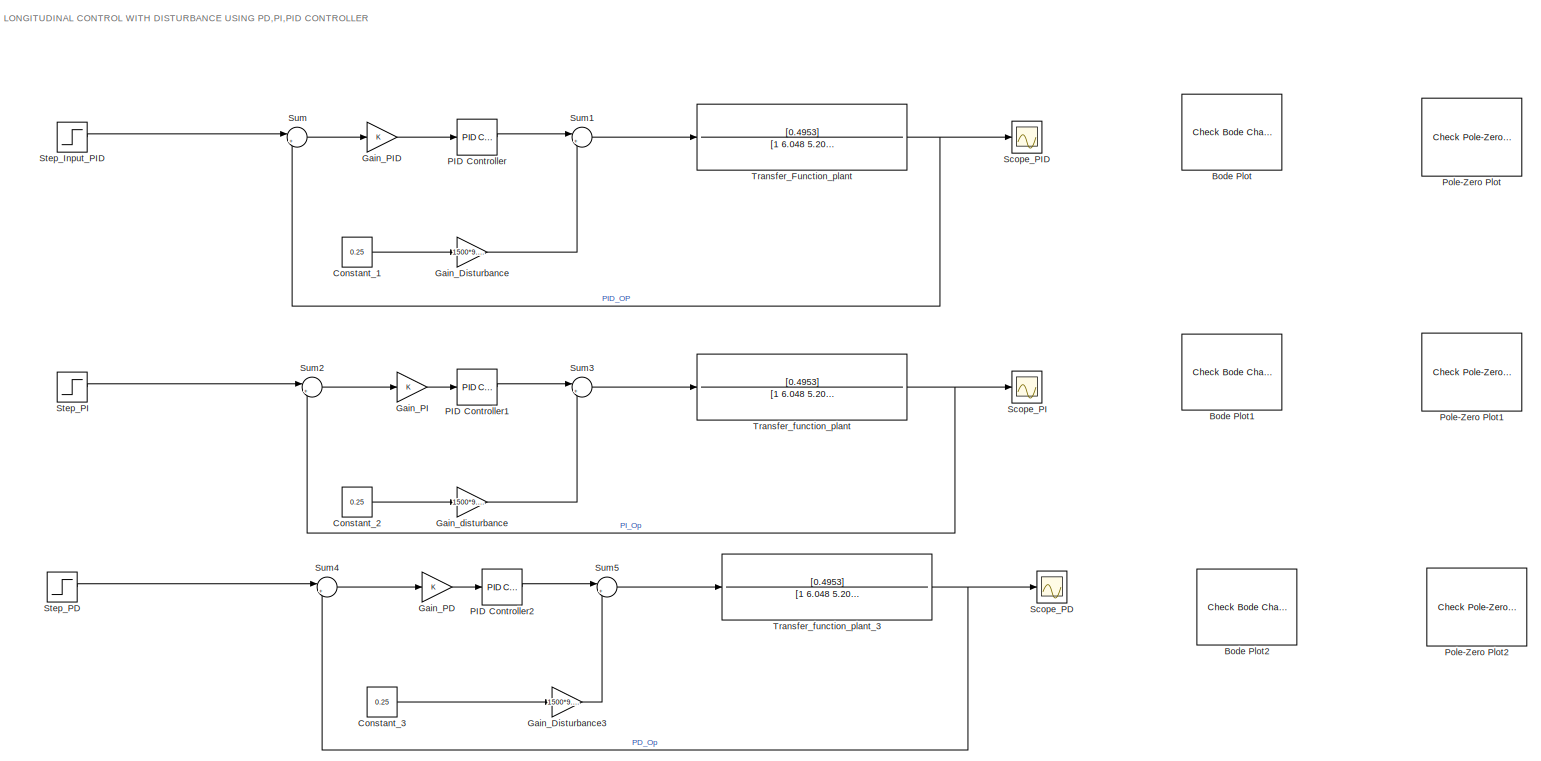
[diagram: root canvas - part 1/2, most of the canvas]
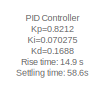
[diagram: root canvas - part 2/2, top left region]
MODEL slx_4bfec68eb465
KIND model
CONFIG AbsTol = auto
CONFIG EnableMultiTasking = off
CONFIG FixedStep = auto
CONFIG MaxStep = auto
CONFIG MinStep = auto
CONFIG RelTol = 1e-3
CONFIG SampleTimeConstraint = Unconstrained
CONFIG SolverName = VariableStepAuto
CONFIG StartTime = 0.0
CONFIG StopTime = 100
BLOCK [Reference] Bode Plot  REF=slctrlblks/Model Verification/Check Bode 
Characteristics
  InstantiateOnLoad = on
  Ports = []
  SourceBlock = slctrlblks/Model Verification/Check Bode \nCharacteristics
  SourceProductBaseCode = SD
  SourceType = Checks_Bode
BLOCK [Reference] Bode Plot1  REF=slctrlblks/Model Verification/Check Bode 
Characteristics
  InstantiateOnLoad = on
  Ports = []
  SourceBlock = slctrlblks/Model Verification/Check Bode \nCharacteristics
  SourceProductBaseCode = SD
  SourceType = Checks_Bode
BLOCK [Reference] Bode Plot2  REF=slctrlblks/Model Verification/Check Bode 
Characteristics
  InstantiateOnLoad = on
  Ports = []
  SourceBlock = slctrlblks/Model Verification/Check Bode \nCharacteristics
  SourceProductBaseCode = SD
  SourceType = Checks_Bode
BLOCK [Constant] Constant_1
  Value = 0.25
BLOCK [Constant] Constant_2
  Value = 0.25
BLOCK [Constant] Constant_3
  Value = 0.25
BLOCK [Gain] Gain_Disturbance
  Gain = 1500*9.81
BLOCK [Gain] Gain_Disturbance3
  Gain = 1500*9.81
BLOCK [Gain] Gain_PD
BLOCK [Gain] Gain_PI
BLOCK [Gain] Gain_PID
BLOCK [Gain] Gain_disturbance
  Gain = 1500*9.81
BLOCK [Reference] PID Controller  REF=pid_lib/PID Controller
  Ports = [1, 1]
  SourceBlock = pid_lib/PID Controller
  SourceProductBaseCode = SL
  SourceType = PID 1dof
BLOCK [Reference] PID Controller1  REF=pid_lib/PID Controller
  Ports = [1, 1]
  SourceBlock = pid_lib/PID Controller
  SourceProductBaseCode = SL
  SourceType = PID 1dof
BLOCK [Reference] PID Controller2  REF=pid_lib/PID Controller
  Ports = [1, 1]
  SourceBlock = pid_lib/PID Controller
  SourceProductBaseCode = SL
  SourceType = PID 1dof
BLOCK [Reference] Pole-Zero Plot  REF=slctrlblks/Model Verification/Check Pole-Zero
Characteristics
  InstantiateOnLoad = on
  Ports = []
  SourceBlock = slctrlblks/Model Verification/Check Pole-Zero\nCharacteristics
  SourceProductBaseCode = SD
  SourceType = Checks_PZMap
BLOCK [Reference] Pole-Zero Plot1  REF=slctrlblks/Model Verification/Check Pole-Zero
Characteristics
  InstantiateOnLoad = on
  Ports = []
  SourceBlock = slctrlblks/Model Verification/Check Pole-Zero\nCharacteristics
  SourceProductBaseCode = SD
  SourceType = Checks_PZMap
BLOCK [Reference] Pole-Zero Plot2  REF=slctrlblks/Model Verification/Check Pole-Zero
Characteristics
  InstantiateOnLoad = on
  Ports = []
  SourceBlock = slctrlblks/Model Verification/Check Pole-Zero\nCharacteristics
  SourceProductBaseCode = SD
  SourceType = Checks_PZMap
BLOCK [Scope] Scope_PD
  Floating = off
  NumInputPorts = 1
  Ports = [1]
  ScopeSpecificationString = Simulink.scopes.TimeScopeBlockCfg('CurrentConfiguration', extmgr.ConfigurationSet(extmgr.Configuration('Core','General UI',true),extmgr.Configuration('Core','Source UI',true),extmgr.Configuration('Sources','WiredSimulink',true,'DataLoggingVariableName','ScopeData2'),extmgr.Configuration('Visuals','Time Domain',true,'SerializedDisplays',{struct('MinYLimReal','-1.00000','MaxYLimReal','1.00000','YLab...<+1414ch>
BLOCK [Scope] Scope_PI
  Floating = off
  NumInputPorts = 1
  Ports = [1]
  ScopeSpecificationString = Simulink.scopes.TimeScopeBlockCfg('CurrentConfiguration', extmgr.ConfigurationSet(extmgr.Configuration('Core','General UI',true),extmgr.Configuration('Core','Source UI',true),extmgr.Configuration('Sources','WiredSimulink',true,'DataLoggingVariableName','ScopeData1'),extmgr.Configuration('Visuals','Time Domain',true,'SerializedDisplays',{struct('MinYLimReal','-3416.74869','MaxYLimReal','1560.37272'...<+1475ch>
BLOCK [Scope] Scope_PID
  Floating = off
  NumInputPorts = 1
  Ports = [1]
  ScopeSpecificationString = Simulink.scopes.TimeScopeBlockCfg('CurrentConfiguration', extmgr.ConfigurationSet(extmgr.Configuration('Core','General UI',true),extmgr.Configuration('Core','Source UI',true),extmgr.Configuration('Sources','WiredSimulink',true),extmgr.Configuration('Visuals','Time Domain',true,'SerializedDisplays',{struct('MinYLimReal','-1.00000','MaxYLimReal','1.00000','YLabelReal','','MinYLimMag','0.00000','MaxY...<+1376ch>
BLOCK [Step] Step_Input_PID
  After = 30
  SampleTime = 0
BLOCK [Step] Step_PD
  After = 30
  SampleTime = 0
BLOCK [Step] Step_PI
  After = 30
  SampleTime = 0
BLOCK [Sum] Sum
  Inputs = |+-
  Ports = [2, 1]
BLOCK [Sum] Sum1
  Inputs = |+-
  Ports = [2, 1]
BLOCK [Sum] Sum2
  Inputs = |+-
  Ports = [2, 1]
BLOCK [Sum] Sum3
  Inputs = |+-
  Ports = [2, 1]
BLOCK [Sum] Sum4
  Inputs = |+-
  Ports = [2, 1]
BLOCK [Sum] Sum5
  Inputs = |+-
  Ports = [2, 1]
BLOCK [TransferFcn] Transfer_Function_plant
  Denominator = [1 6.048 5.206 0.238]
  Numerator = [0.4953]
BLOCK [TransferFcn] Transfer_function_plant
  Denominator = [1 6.048 5.206 0.238]
  Numerator = [0.4953]
BLOCK [TransferFcn] Transfer_function_plant_3
  Denominator = [1 6.048 5.206 0.238]
  Numerator = [0.4953]
ANNOTATION (root): LONGITUDINAL CONTROL WITH DISTURBANCE USING PD,PI,PID CONTROLLER
ANNOTATION (root): PID Controller Kp=0.8212 Ki=0.070275 Kd=0.1688 Rise time: 14.9 s Settling time: 58.6s Overshoot: 7.39% PI Controller Kp=0.70851 Ki=0.08117 Rise time: 13.7s Settling time: 55.3s Overshoot: 13.2% PD Controller Kp=0.501 Kd= 28.5792 Rise time: 13.7s Settling time: 55.3s Overshoot: 13.2% Speed=PD>=PI>PID System with PD,PI Controllers, speed is High because Rise time is less. Accuracy=PD>=PI>PID System ...<+162ch>
LINE Constant_1:1 -> Gain_Disturbance:1
LINE Constant_2:1 -> Gain_disturbance:1
LINE Constant_3:1 -> Gain_Disturbance3:1
LINE Gain_Disturbance3:1 -> Sum5:2
LINE Gain_Disturbance:1 -> Sum1:2
LINE Gain_PD:1 -> PID Controller2:1
LINE Gain_PI:1 -> PID Controller1:1
LINE Gain_PID:1 -> PID Controller:1
LINE Gain_disturbance:1 -> Sum3:2
LINE PID Controller1:1 -> Sum3:1
LINE PID Controller2:1 -> Sum5:1
LINE PID Controller:1 -> Sum1:1
LINE Step_Input_PID:1 -> Sum:1
LINE Step_PD:1 -> Sum4:1
LINE Step_PI:1 -> Sum2:1
LINE Sum1:1 -> Transfer_Function_plant:1
LINE Sum2:1 -> Gain_PI:1
LINE Sum3:1 -> Transfer_function_plant:1
LINE Sum4:1 -> Gain_PD:1
LINE Sum5:1 -> Transfer_function_plant_3:1
LINE Sum:1 -> Gain_PID:1
NET Transfer_Function_plant:1 -> Scope_PID:1, Sum:2
NET Transfer_function_plant:1 -> Scope_PI:1, Sum2:2
NET Transfer_function_plant_3:1 -> Scope_PD:1, Sum4:2
note: NET lines group one-source signal fan-out (src -> all destinations, sorted); 1:1 wires keep LINE
